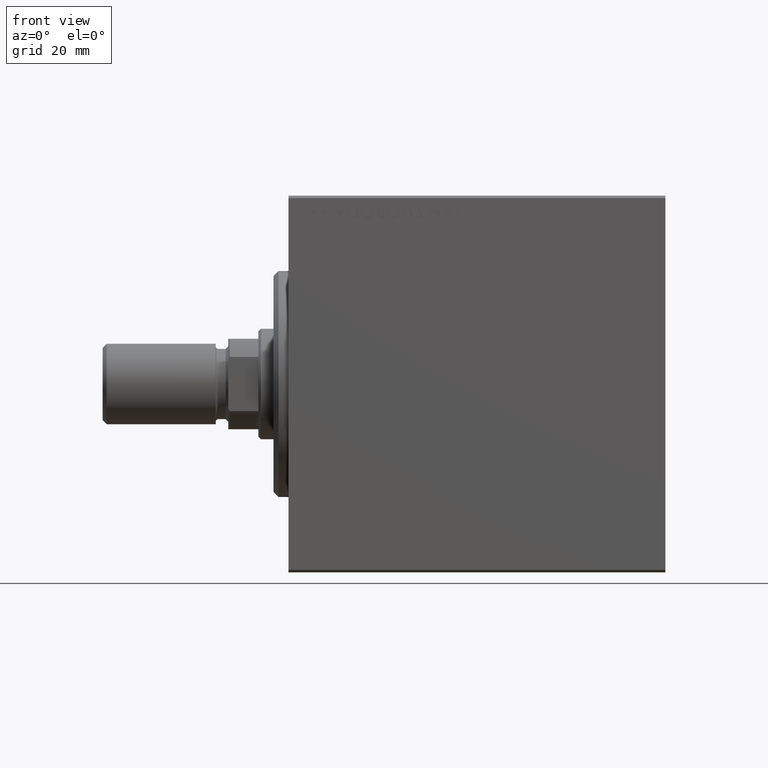
[diagram: clean part render]
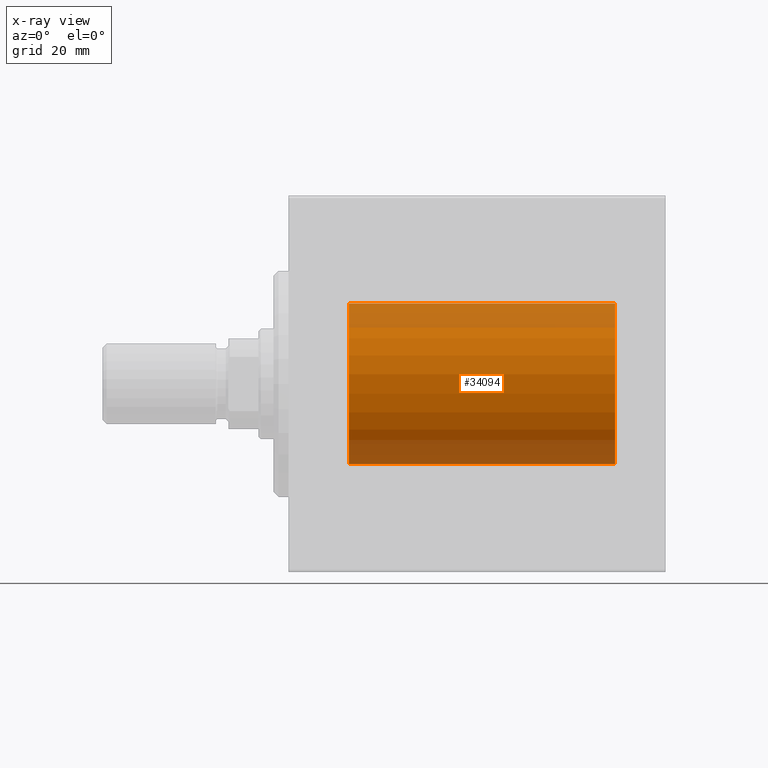
[diagram: x-ray — body ghosted, one internal face saturated and labeled with its STEP entity id]
A machine part, front view, then the same camera in x-ray: the body is ghosted and one INTERNAL B-rep face — a face not visible from any outside direction — is saturated and labeled: STEP entity #34094.
In plain terms, the highlighted cylindrical surface (partial cylindrical patch) has radius 16 mm, axis along (-1, -0, -0).
Its self-contained STEP definition (entity closure, byte-faithful):
#73 = FACE_OUTER_BOUND ( 'NONE', #31057, .T. ) ;
#274 = CIRCLE ( 'NONE', #29729, 16.00000000000000000 ) ;
#3344 = DIRECTION ( 'NONE',  ( 0.000000000000000000, 0.000000000000000000, 1.000000000000000000 ) ) ;
#4600 = DIRECTION ( 'NONE',  ( 0.000000000000000000, 0.000000000000000000, 1.000000000000000000 ) ) ;
#5975 = ORIENTED_EDGE ( 'NONE', *, *, #17047, .F. ) ;
#6954 = LINE ( 'NONE', #20908, #19945 ) ;
#7106 = DIRECTION ( 'NONE',  ( -1.000000000000000000, -0.000000000000000000, -0.000000000000000000 ) ) ;
#11354 = DIRECTION ( 'NONE',  ( -1.000000000000000000, 0.000000000000000000, 0.000000000000000000 ) ) ;
#13683 = DIRECTION ( 'NONE',  ( -1.000000000000000000, 0.000000000000000000, 0.000000000000000000 ) ) ;
#14111 = CARTESIAN_POINT ( 'NONE',  ( 11.99999999999999645, 0.000000000000000000, 0.000000000000000000 ) ) ;
#16975 = CARTESIAN_POINT ( 'NONE',  ( 11.99999999999999645, 1.959434878635765131E-15, -16.00000000000000000 ) ) ;
#17047 = EDGE_CURVE ( 'NONE', #36061, #23687, #6954, .T. ) ;
#17822 = CYLINDRICAL_SURFACE ( 'NONE', #35619, 16.00000000000000000 ) ;
#18652 = CARTESIAN_POINT ( 'NONE',  ( 65.00000000000000000, 0.000000000000000000, 16.00000000000000000 ) ) ;
#19945 = VECTOR ( 'NONE', #27234, 1000.000000000000000 ) ;
#19968 = ORIENTED_EDGE ( 'NONE', *, *, #34764, .T. ) ;
#20908 = CARTESIAN_POINT ( 'NONE',  ( 65.00000000000000000, 0.000000000000000000, 16.00000000000000000 ) ) ;
#22525 = CARTESIAN_POINT ( 'NONE',  ( 65.00000000000000000, 1.959434878635765131E-15, -16.00000000000000000 ) ) ;
#23687 = VERTEX_POINT ( 'NONE', #25563 ) ;
#24194 = CARTESIAN_POINT ( 'NONE',  ( 65.00000000000000000, 1.959434878635765131E-15, -16.00000000000000000 ) ) ;
#25563 = CARTESIAN_POINT ( 'NONE',  ( 11.99999999999999645, 0.000000000000000000, 16.00000000000000000 ) ) ;
#27234 = DIRECTION ( 'NONE',  ( -1.000000000000000000, -0.000000000000000000, -0.000000000000000000 ) ) ;
#27380 = VERTEX_POINT ( 'NONE', #22525 ) ;
#29069 = EDGE_CURVE ( 'NONE', #27380, #36061, #274, .T. ) ;
#29729 = AXIS2_PLACEMENT_3D ( 'NONE', #43108, #11354, #4600 ) ;
#30637 = CIRCLE ( 'NONE', #42842, 16.00000000000000000 ) ;
#31057 = EDGE_LOOP ( 'NONE', ( #32540, #19968, #36751, #5975 ) ) ;
#32540 = ORIENTED_EDGE ( 'NONE', *, *, #29069, .F. ) ;
#34094 = ADVANCED_FACE ( 'NONE', ( #73 ), #17822, .F. ) ;
#34522 = EDGE_CURVE ( 'NONE', #42013, #23687, #30637, .T. ) ;
#34764 = EDGE_CURVE ( 'NONE', #27380, #42013, #41320, .T. ) ;
#35150 = CARTESIAN_POINT ( 'NONE',  ( 65.00000000000000000, 0.000000000000000000, 0.000000000000000000 ) ) ;
#35619 = AXIS2_PLACEMENT_3D ( 'NONE', #35150, #41924, #37657 ) ;
#36061 = VERTEX_POINT ( 'NONE', #18652 ) ;
#36751 = ORIENTED_EDGE ( 'NONE', *, *, #34522, .T. ) ;
#37657 = DIRECTION ( 'NONE',  ( 0.000000000000000000, 0.000000000000000000, 1.000000000000000000 ) ) ;
#41320 = LINE ( 'NONE', #24194, #42140 ) ;
#41924 = DIRECTION ( 'NONE',  ( -1.000000000000000000, -0.000000000000000000, -0.000000000000000000 ) ) ;
#42013 = VERTEX_POINT ( 'NONE', #16975 ) ;
#42140 = VECTOR ( 'NONE', #7106, 1000.000000000000000 ) ;
#42842 = AXIS2_PLACEMENT_3D ( 'NONE', #14111, #13683, #3344 ) ;
#43108 = CARTESIAN_POINT ( 'NONE',  ( 65.00000000000000000, 0.000000000000000000, 0.000000000000000000 ) ) ;